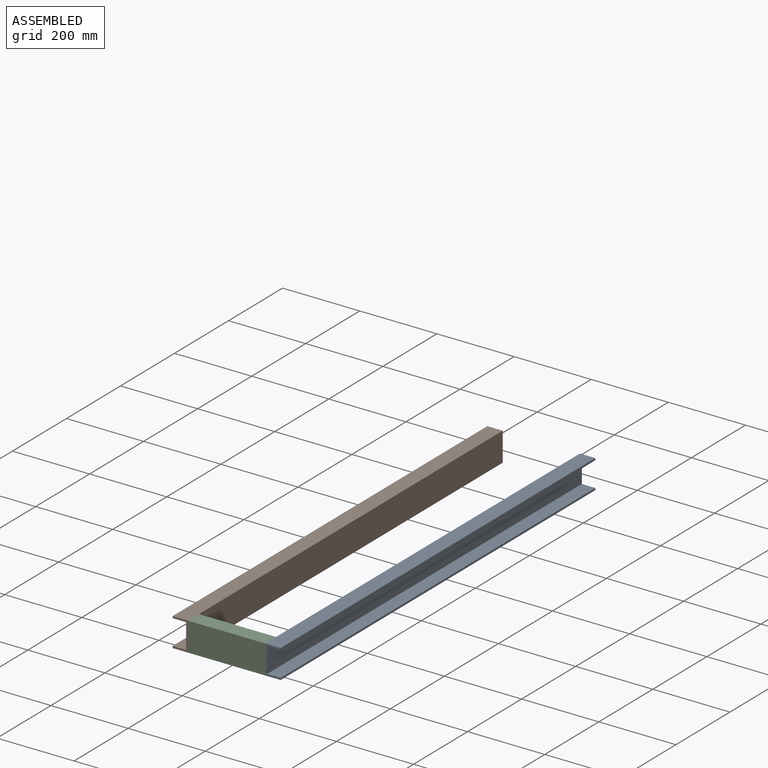
[diagram: assembled view]
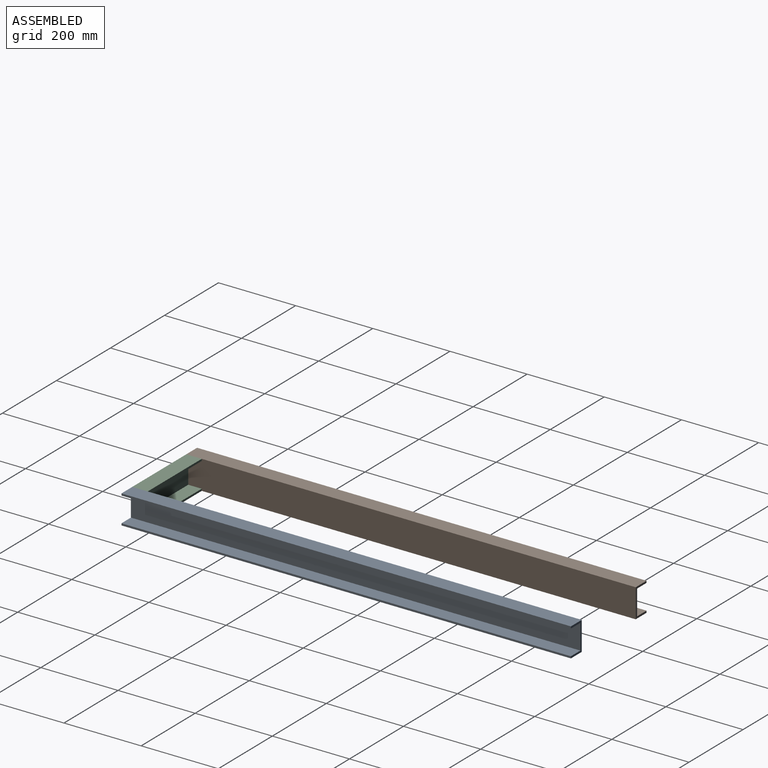
[diagram: assembled view, second angle]
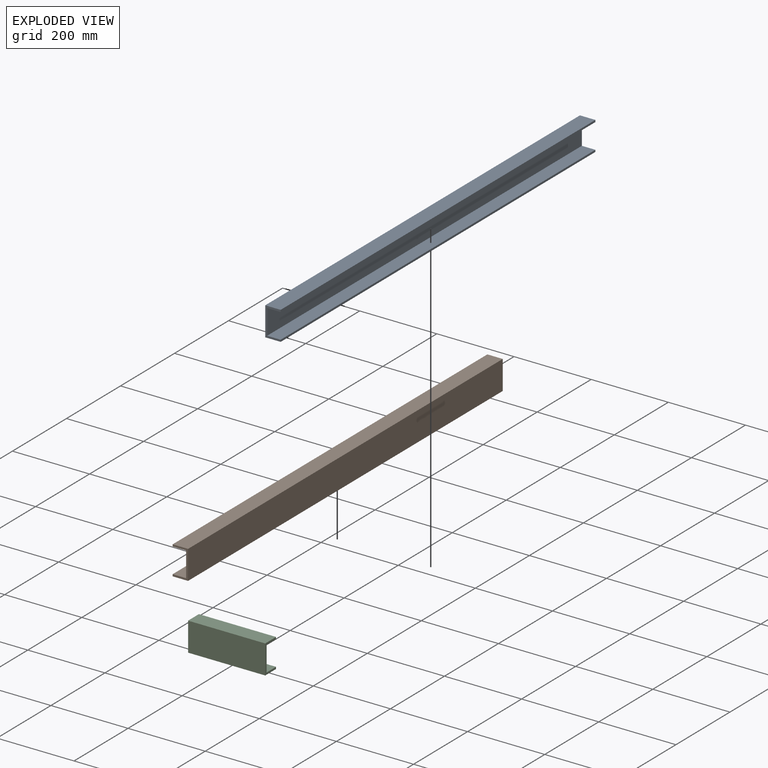
[diagram: exploded view]
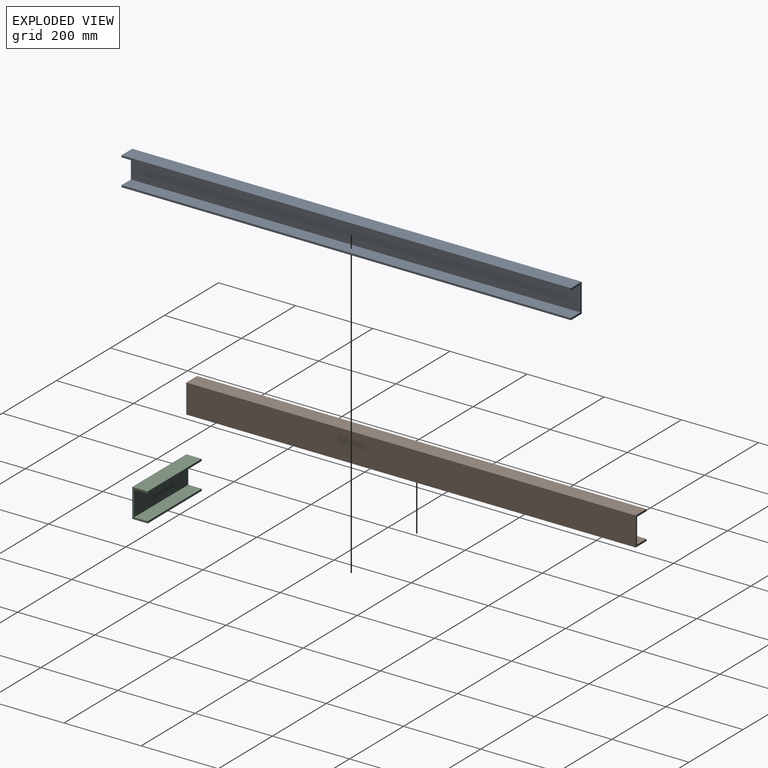
[diagram: exploded view, second angle]
ASSEMBLY  parts=3 mates=2
PART A: 10 faces, bbox 40x1165x75 mm
  f0: plane 1165x40mm, normal (0,0,1), area 46600mm2, adj f1,f7,f8,f9
  f1: plane 1165x75mm, normal (-1,0,0), area 87375mm2, adj f0,f2,f8,f9
  f2: plane 1165x40mm, normal (0,0,-1), area 46600mm2, adj f1,f3,f8,f9
  f3: plane 1165x5mm, normal (1,0,0), area 5825mm2, adj f2,f4,f8,f9
  f4: plane 1165x35mm, normal (0,0,1), area 40775mm2, adj f3,f5,f8,f9
  f5: plane 1165x65mm, normal (1,0,0), area 75725mm2, adj f4,f6,f8,f9
  f6: plane 1165x35mm, normal (0,0,-1), area 40775mm2, adj f5,f7,f8,f9
  f7: plane 1165x5mm, normal (1,0,0), area 5825mm2, adj f0,f6,f8,f9
  f8: plane 75x40mm, normal (0,1,0), area 725mm2, adj f0,f1,f2,f3,f4,f5,f6,f7
  f9: plane 75x40mm, normal (0,-1,0), area 725mm2, adj f0,f1,f2,f3,f4,f5,f6,f7
PART B: 10 faces, bbox 40x1165x75 mm
  f0: plane 1165x40mm, normal (0,0,-1), area 46600mm2, adj f1,f7,f8,f9
  f1: plane 1165x75mm, normal (1,0,0), area 87375mm2, adj f0,f2,f8,f9
  f2: plane 1165x40mm, normal (0,0,1), area 46600mm2, adj f1,f3,f8,f9
  f3: plane 1165x5mm, normal (-1,0,0), area 5825mm2, adj f2,f4,f8,f9
  f4: plane 1165x35mm, normal (0,0,-1), area 40775mm2, adj f3,f5,f8,f9
  f5: plane 1165x65mm, normal (-1,0,0), area 75725mm2, adj f4,f6,f8,f9
  f6: plane 1165x35mm, normal (0,0,1), area 40775mm2, adj f5,f7,f8,f9
  f7: plane 1165x5mm, normal (-1,0,0), area 5825mm2, adj f0,f6,f8,f9
  f8: plane 75x40mm, normal (0,1,0), area 725mm2, adj f0,f1,f2,f3,f4,f5,f6,f7
  f9: plane 75x40mm, normal (0,-1,0), area 725mm2, adj f0,f1,f2,f3,f4,f5,f6,f7
PART C: 10 faces, bbox 200x40x75 mm
  f0: plane 200x40mm, normal (0,0,-1), area 8000mm2, adj f1,f7,f8,f9
  f1: plane 200x5mm, normal (0,1,0), area 1000mm2, adj f0,f2,f8,f9
  f2: plane 200x35mm, normal (0,0,1), area 7000mm2, adj f1,f3,f8,f9
  f3: plane 200x65mm, normal (0,1,0), area 13000mm2, adj f2,f4,f8,f9
  f4: plane 200x35mm, normal (0,0,-1), area 7000mm2, adj f3,f5,f8,f9
  f5: plane 200x5mm, normal (0,1,0), area 1000mm2, adj f4,f6,f8,f9
  f6: plane 200x40mm, normal (0,0,1), area 8000mm2, adj f5,f7,f8,f9
  f7: plane 200x75mm, normal (0,-1,0), area 15000mm2, adj f0,f6,f8,f9
  f8: plane 75x40mm, normal (1,0,0), area 725mm2, adj f0,f1,f2,f3,f4,f5,f6,f7
  f9: plane 75x40mm, normal (-1,0,0), area 725mm2, adj f0,f1,f2,f3,f4,f5,f6,f7
PLACE A t=(-191.48,-627.14,-35.06)mm
PLACE B t=(-191.48,-627.14,-35.06)mm
PLACE C t=(-191.48,-627.14,-35.06)mm fixed
MATE fastened C.f6 <-> A.f0  axis (0,0,1) through (-91.48,-647.14,2.44)mm
MATE fastened B.f2 <-> C.f6  axis (0,0,1) through (-291.48,-647.14,2.44)mm
